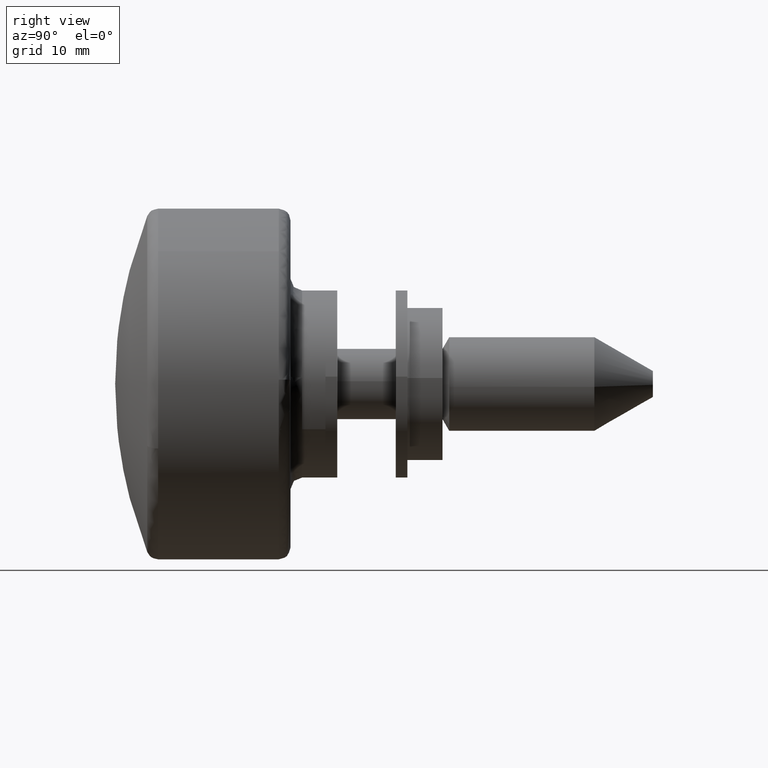
[diagram: clean part render]
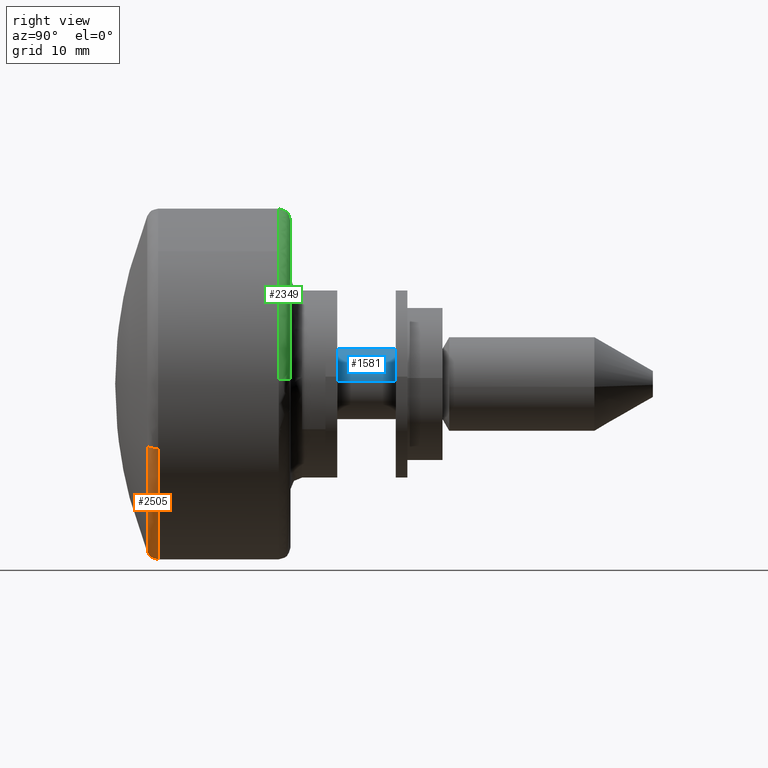
[diagram: same view with three faces highlighted in distinct colors, each labeled with its STEP entity id]
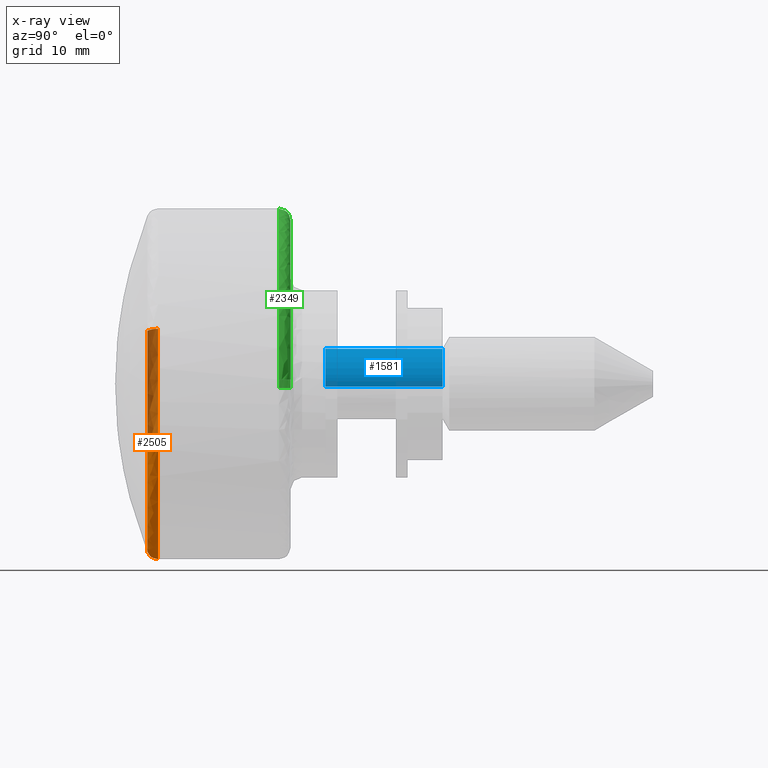
[diagram: x-ray of the same camera — body ghosted, the three highlighted faces saturated]
A machine part, right view with three faces highlighted in distinct colors.
The next image is the same camera in x-ray (body ghosted, the three faces saturated) — at least one of them is partly hidden behind the body in this view.
Their STEP definitions:

[orange] entity #2505 — the highlighted face is a freeform B-spline surface patch.
#1628=CARTESIAN_POINT('',(-14.327043465391450,-13.946647288323000,-5.521868290272103));
#1629=VERTEX_POINT('',#1628);
#1645=CARTESIAN_POINT('',(-14.327043465311441,0.0,-15.0));
#1646=VERTEX_POINT('',#1645);
#1647=CARTESIAN_POINT('',(-14.327043465391453,-13.946647288323000,-5.521868290272103));
#1648=CARTESIAN_POINT('',(-14.327043465311442,-10.193989473364850,-14.999999999999996));
#1649=CARTESIAN_POINT('',(-14.327043465311441,0.0,-15.0));
#1657=(BOUNDED_CURVE()B_SPLINE_CURVE(2,(#1647,#1648,#1649),.UNSPECIFIED.,.F.,.U.)B_SPLINE_CURVE_WITH_KNOTS((3,3),(0.812505050763747,1.0),.UNSPECIFIED.)CURVE()GEOMETRIC_REPRESENTATION_ITEM()RATIONAL_B_SPLINE_CURVE((0.890159125846247,0.780336003227716,1.0))REPRESENTATION_ITEM(''));
#1658=EDGE_CURVE('',#1629,#1646,#1657,.T.);
#1660=CARTESIAN_POINT('',(-14.327043465311441,11.059160299471101,-10.133852844333299));
#1661=VERTEX_POINT('',#1660);
#1662=CARTESIAN_POINT('',(-14.327043465311441,0.0,-15.0));
#1663=CARTESIAN_POINT('',(-14.327043465311441,6.600158400332546,-15.000000000000007));
#1664=CARTESIAN_POINT('',(-14.327043465311441,11.059160299471099,-10.133852844333299));
#1672=(BOUNDED_CURVE()B_SPLINE_CURVE(2,(#1662,#1663,#1664),.UNSPECIFIED.,.F.,.U.)B_SPLINE_CURVE_WITH_KNOTS((3,3),(0.0,0.131584798284372),.UNSPECIFIED.)CURVE()GEOMETRIC_REPRESENTATION_ITEM()RATIONAL_B_SPLINE_CURVE((1.0,0.845838819534286,0.853959781747465))REPRESENTATION_ITEM(''));
#1673=EDGE_CURVE('',#1646,#1661,#1672,.T.);
#1779=CARTESIAN_POINT('',(-14.327043465390380,14.239627476018679,4.715189216162353));
#1780=VERTEX_POINT('',#1779);
#1781=CARTESIAN_POINT('',(-14.327043465311441,11.059160299471099,-10.133852844333299));
#1782=CARTESIAN_POINT('',(-14.327043465311437,15.000000000000004,-5.833180556355178));
#1783=CARTESIAN_POINT('',(-14.327043465311441,15.0,0.0));
#1784=CARTESIAN_POINT('',(-14.327043465311444,15.000000000000002,2.418903534271208));
#1785=CARTESIAN_POINT('',(-14.327043465390382,14.239627476018688,4.715189216162353));
#1793=(BOUNDED_CURVE()B_SPLINE_CURVE(2,(#1781,#1782,#1783,#1784,#1785),.UNSPECIFIED.,.F.,.U.)B_SPLINE_CURVE_WITH_KNOTS((3,2,3),(0.131584798284372,0.250000000000000,0.303444232663925),.UNSPECIFIED.)CURVE()GEOMETRIC_REPRESENTATION_ITEM()RATIONAL_B_SPLINE_CURVE((0.853959781747465,0.861267961652261,1.0,0.937386186672192,0.901543151004119))REPRESENTATION_ITEM(''));
#1794=EDGE_CURVE('',#1661,#1780,#1793,.T.);
#2381=CARTESIAN_POINT('',(-15.256702503002289,13.640064215933929,4.516654934128848));
#2382=VERTEX_POINT('',#2381);
#2396=CARTESIAN_POINT('',(-15.256702503107171,-13.359420035854139,-5.289368573544957));
#2397=VERTEX_POINT('',#2396);
#2413=CARTESIAN_POINT('',(-15.256702503107181,-13.359420035854141,-5.289368573544957));
#2414=CARTESIAN_POINT('',(-15.006409682806121,-13.946647288222717,-5.521868290230152));
#2415=CARTESIAN_POINT('',(-14.327043465391446,-13.946647288323005,-5.521868290272103));
#2423=(BOUNDED_CURVE()B_SPLINE_CURVE(2,(#2413,#2414,#2415),.UNSPECIFIED.,.F.,.U.)B_SPLINE_CURVE_WITH_KNOTS((3,3),(-1.675526647627337,-0.339037320909828),.UNSPECIFIED.)CURVE()GEOMETRIC_REPRESENTATION_ITEM()RATIONAL_B_SPLINE_CURVE((0.904968416644587,0.747154401147902,0.901566036643014))REPRESENTATION_ITEM(''));
#2424=EDGE_CURVE('',#2397,#1629,#2423,.T.);
#2429=CARTESIAN_POINT('',(-15.256702503002284,13.640064215933929,4.516654934128848));
#2430=CARTESIAN_POINT('',(-15.006409682389457,14.239627475918562,4.715189216123598));
#2431=CARTESIAN_POINT('',(-14.327043465390382,14.239627476018679,4.715189216162353));
#2439=(BOUNDED_CURVE()B_SPLINE_CURVE(2,(#2429,#2430,#2431),.UNSPECIFIED.,.F.,.U.)B_SPLINE_CURVE_WITH_KNOTS((3,3),(-1.675526646948971,-0.339037320907277),.UNSPECIFIED.)CURVE()GEOMETRIC_REPRESENTATION_ITEM()RATIONAL_B_SPLINE_CURVE((0.884611876649865,0.730347761288002,0.881286030618994))REPRESENTATION_ITEM(''));
#2440=EDGE_CURVE('',#2382,#1780,#2439,.T.);
#2445=CARTESIAN_POINT('',(-15.275719198547586,-13.310913043381374,-5.270163296545596));
#2446=CARTESIAN_POINT('',(-15.275719198547590,-8.040749746835777,-18.581076339926966));
#2447=CARTESIAN_POINT('',(-15.275719198547586,5.270163296545595,-13.310913043381374));
#2448=CARTESIAN_POINT('',(-15.275719198547586,17.840369817282902,-8.334016205449723));
#2449=CARTESIAN_POINT('',(-15.275719198547595,13.590538226498158,4.500255318846810));
#2450=CARTESIAN_POINT('',(-15.034110626661432,-13.984785217002278,-5.536968164431514));
#2451=CARTESIAN_POINT('',(-15.034110626661423,-8.447817052570766,-19.521753381433797));
#2452=CARTESIAN_POINT('',(-15.034110626661432,5.536968164431513,-13.984785217002278));
#2453=CARTESIAN_POINT('',(-15.034110626661425,18.743548190381137,-8.755930284300293));
#2454=CARTESIAN_POINT('',(-15.034110626661422,14.278566576283081,4.728083178864892));
#2455=CARTESIAN_POINT('',(-14.271319138471748,-13.945202594684160,-5.521296295594107));
#2456=CARTESIAN_POINT('',(-14.271319138471748,-8.423906299090053,-19.466498890278270));
#2457=CARTESIAN_POINT('',(-14.271319138471748,5.521296295594106,-13.945202594684160));
#2458=CARTESIAN_POINT('',(-14.271319138471750,18.690496335997324,-8.731147445228450));
#2459=CARTESIAN_POINT('',(-14.271319138471744,14.238152433394003,4.714700783078781));
#2467=(BOUNDED_SURFACE()B_SPLINE_SURFACE(2,2,((#2445,#2450,#2455),(#2446,#2451,#2456),(#2447,#2452,#2457),(#2448,#2453,#2458),(#2449,#2454,#2459)),.UNSPECIFIED.,.F.,.F.,.U.)B_SPLINE_SURFACE_WITH_KNOTS((3,2,3),(3,3),(0.0,24.850239309893229,48.706469047390733),(0.0,1.353108793930158),.UNSPECIFIED.)GEOMETRIC_REPRESENTATION_ITEM()RATIONAL_B_SPLINE_SURFACE(((0.921513161804328,0.730779672986403,0.917770750432629),(0.651608205664496,0.516739262321973,0.648961921205579),(0.921513161804328,0.730779672986403,0.917770750432629),(0.662404403910090,0.525300878748551,0.659714274374661),(0.900784461172789,0.714341369447375,0.897126232347992)))REPRESENTATION_ITEM('')SURFACE());
#2468=CARTESIAN_POINT('',(-15.256702503872249,0.0,-14.368421052631540));
#2469=VERTEX_POINT('',#2468);
#2470=CARTESIAN_POINT('',(-15.256702503002289,13.640064215933927,4.516654934128848));
#2471=CARTESIAN_POINT('',(-15.256702503872251,14.368421052631538,2.317054964474377));
#2472=CARTESIAN_POINT('',(-15.256702503872249,14.368421052631540,0.0));
#2473=CARTESIAN_POINT('',(-15.256702503872257,14.368421052631538,-14.368421052631538));
#2474=CARTESIAN_POINT('',(-15.256702503872249,0.0,-14.368421052631540));
#2482=(BOUNDED_CURVE()B_SPLINE_CURVE(2,(#2470,#2471,#2472,#2473,#2474),.UNSPECIFIED.,.F.,.U.)B_SPLINE_CURVE_WITH_KNOTS((3,2,3),(0.696555767334622,0.750000000000000,1.0),.UNSPECIFIED.)CURVE()GEOMETRIC_REPRESENTATION_ITEM()RATIONAL_B_SPLINE_CURVE((0.901543151002170,0.937386186670489,1.0,0.707106781186547,1.0))REPRESENTATION_ITEM(''));
#2483=EDGE_CURVE('',#2382,#2469,#2482,.T.);
#2484=ORIENTED_EDGE('',*,*,#2483,.F.);
#2485=ORIENTED_EDGE('',*,*,#2440,.T.);
#2486=ORIENTED_EDGE('',*,*,#1794,.F.);
#2487=ORIENTED_EDGE('',*,*,#1673,.F.);
#2488=ORIENTED_EDGE('',*,*,#1658,.F.);
#2489=ORIENTED_EDGE('',*,*,#2424,.F.);
#2490=CARTESIAN_POINT('',(-15.256702503872249,0.0,-14.368421052631540));
#2491=CARTESIAN_POINT('',(-15.256702503872244,-9.764768863885633,-14.368421052631547));
#2492=CARTESIAN_POINT('',(-15.256702503107174,-13.359420035854136,-5.289368573544957));
#2500=(BOUNDED_CURVE()B_SPLINE_CURVE(2,(#2490,#2491,#2492),.UNSPECIFIED.,.F.,.U.)B_SPLINE_CURVE_WITH_KNOTS((3,3),(0.0,0.187494949235139),.UNSPECIFIED.)CURVE()GEOMETRIC_REPRESENTATION_ITEM()RATIONAL_B_SPLINE_CURVE((1.0,0.780336003229021,0.890159125844942))REPRESENTATION_ITEM(''));
#2501=EDGE_CURVE('',#2469,#2397,#2500,.T.);
#2502=ORIENTED_EDGE('',*,*,#2501,.F.);
#2503=EDGE_LOOP('',(#2484,#2485,#2486,#2487,#2488,#2489,#2502));
#2504=FACE_OUTER_BOUND('',#2503,.T.);
#2505=ADVANCED_FACE('',(#2504),#2467,.T.);

[blue] entity #1581 — the highlighted face is a freeform B-spline surface patch.
#985=CARTESIAN_POINT('',(10.0,2.990752001195804,-0.235377287229015));
#986=VERTEX_POINT('',#985);
#1000=CARTESIAN_POINT('',(10.0,0.0,3.0));
#1001=VERTEX_POINT('',#1000);
#1002=CARTESIAN_POINT('',(10.0,2.990752001195804,-0.235377287229015));
#1003=CARTESIAN_POINT('',(9.999999999999998,3.000000000000000,-0.117870321068699));
#1004=CARTESIAN_POINT('',(10.0,3.0,0.0));
#1005=CARTESIAN_POINT('',(10.000000000000002,3.0,3.0));
#1006=CARTESIAN_POINT('',(10.0,0.0,3.0));
#1014=(BOUNDED_CURVE()B_SPLINE_CURVE(2,(#1002,#1003,#1004,#1005,#1006),.UNSPECIFIED.,.F.,.U.)B_SPLINE_CURVE_WITH_KNOTS((3,2,3),(0.236331300627553,0.250000000000000,0.500000000000000),.UNSPECIFIED.)CURVE()GEOMETRIC_REPRESENTATION_ITEM()RATIONAL_B_SPLINE_CURVE((0.969723356160935,0.983986122575243,1.0,0.707106781186548,1.0))REPRESENTATION_ITEM(''));
#1015=EDGE_CURVE('',#986,#1001,#1014,.T.);
#1017=CARTESIAN_POINT('',(10.0,-2.990752001195804,0.235377287229015));
#1018=VERTEX_POINT('',#1017);
#1019=CARTESIAN_POINT('',(10.0,0.0,3.0));
#1020=CARTESIAN_POINT('',(10.000000000000002,-2.773171474890005,3.000000000000001));
#1021=CARTESIAN_POINT('',(10.0,-2.990752001195804,0.235377287229015));
#1029=(BOUNDED_CURVE()B_SPLINE_CURVE(2,(#1019,#1020,#1021),.UNSPECIFIED.,.F.,.U.)B_SPLINE_CURVE_WITH_KNOTS((3,3),(0.500000000000000,0.736331300627552),.UNSPECIFIED.)CURVE()GEOMETRIC_REPRESENTATION_ITEM()RATIONAL_B_SPLINE_CURVE((1.0,0.723120658611306,0.969723356160933))REPRESENTATION_ITEM(''));
#1030=EDGE_CURVE('',#1001,#1018,#1029,.T.);
#1480=CARTESIAN_POINT('',(2.775558E-017,-2.990752001195804,0.235377287229016));
#1481=VERTEX_POINT('',#1480);
#1482=CARTESIAN_POINT('',(10.0,-2.990752001195804,0.235377287229015));
#1483=CARTESIAN_POINT('',(2.775558E-017,-2.990752001195804,0.235377287229016));
#1484=QUASI_UNIFORM_CURVE('',1,(#1482,#1483),.UNSPECIFIED.,.F.,.U.);
#1485=EDGE_CURVE('',#1018,#1481,#1484,.T.);
#1504=CARTESIAN_POINT('',(2.775558E-017,2.990752001195804,-0.235377287229015));
#1505=VERTEX_POINT('',#1504);
#1519=CARTESIAN_POINT('',(10.0,2.990752001195804,-0.235377287229015));
#1520=CARTESIAN_POINT('',(2.775558E-017,2.990752001195804,-0.235377287229015));
#1521=QUASI_UNIFORM_CURVE('',1,(#1519,#1520),.UNSPECIFIED.,.F.,.U.);
#1522=EDGE_CURVE('',#986,#1505,#1521,.T.);
#1527=CARTESIAN_POINT('',(10.250000000000000,-2.990752001199383,0.235377287183537));
#1528=CARTESIAN_POINT('',(10.250000000000002,-2.755374714015846,3.226129288382921));
#1529=CARTESIAN_POINT('',(10.250000000000000,0.235377287183537,2.990752001199383));
#1530=CARTESIAN_POINT('',(10.250000000000002,3.226129288382921,2.755374714015846));
#1531=CARTESIAN_POINT('',(10.250000000000000,2.990752001199383,-0.235377287183537));
#1532=CARTESIAN_POINT('',(-0.256250000000001,-2.990752001199383,0.235377287183537));
#1533=CARTESIAN_POINT('',(-0.256250000000001,-2.755374714015846,3.226129288382921));
#1534=CARTESIAN_POINT('',(-0.256250000000001,0.235377287183537,2.990752001199383));
#1535=CARTESIAN_POINT('',(-0.256250000000001,3.226129288382921,2.755374714015846));
#1536=CARTESIAN_POINT('',(-0.256250000000001,2.990752001199383,-0.235377287183537));
#1544=(BOUNDED_SURFACE()B_SPLINE_SURFACE(2,1,((#1527,#1532),(#1528,#1533),(#1529,#1534),(#1530,#1535),(#1531,#1536)),.UNSPECIFIED.,.F.,.F.,.U.)B_SPLINE_SURFACE_WITH_KNOTS((3,2,3),(2,2),(0.0,4.970562748477140,9.941125496954280),(0.0,10.506250000000000),.UNSPECIFIED.)GEOMETRIC_REPRESENTATION_ITEM()RATIONAL_B_SPLINE_SURFACE(((1.0,1.0),(0.707106781186548,0.707106781186548),(1.0,1.0),(0.707106781186548,0.707106781186548),(1.0,1.0)))REPRESENTATION_ITEM('')SURFACE());
#1545=ORIENTED_EDGE('',*,*,#1015,.F.);
#1546=ORIENTED_EDGE('',*,*,#1522,.T.);
#1547=CARTESIAN_POINT('',(0.0,0.0,3.0));
#1548=VERTEX_POINT('',#1547);
#1549=CARTESIAN_POINT('',(2.775558E-017,2.990752001195804,-0.235377287229015));
#1550=CARTESIAN_POINT('',(0.0,3.000000000000000,-0.117870321068699));
#1551=CARTESIAN_POINT('',(0.0,3.0,0.0));
#1552=CARTESIAN_POINT('',(0.0,3.0,3.0));
#1553=CARTESIAN_POINT('',(0.0,0.0,3.0));
#1561=(BOUNDED_CURVE()B_SPLINE_CURVE(2,(#1549,#1550,#1551,#1552,#1553),.UNSPECIFIED.,.F.,.U.)B_SPLINE_CURVE_WITH_KNOTS((3,2,3),(0.236331300627553,0.250000000000000,0.500000000000000),.UNSPECIFIED.)CURVE()GEOMETRIC_REPRESENTATION_ITEM()RATIONAL_B_SPLINE_CURVE((0.969723356160935,0.983986122575243,1.0,0.707106781186548,1.0))REPRESENTATION_ITEM(''));
#1562=EDGE_CURVE('',#1505,#1548,#1561,.T.);
#1563=ORIENTED_EDGE('',*,*,#1562,.T.);
#1564=CARTESIAN_POINT('',(0.0,0.0,3.0));
#1565=CARTESIAN_POINT('',(0.0,-2.773171474890005,3.000000000000001));
#1566=CARTESIAN_POINT('',(2.775558E-017,-2.990752001195804,0.235377287229016));
#1574=(BOUNDED_CURVE()B_SPLINE_CURVE(2,(#1564,#1565,#1566),.UNSPECIFIED.,.F.,.U.)B_SPLINE_CURVE_WITH_KNOTS((3,3),(0.500000000000000,0.736331300627552),.UNSPECIFIED.)CURVE()GEOMETRIC_REPRESENTATION_ITEM()RATIONAL_B_SPLINE_CURVE((1.0,0.723120658611306,0.969723356160933))REPRESENTATION_ITEM(''));
#1575=EDGE_CURVE('',#1548,#1481,#1574,.T.);
#1576=ORIENTED_EDGE('',*,*,#1575,.T.);
#1577=ORIENTED_EDGE('',*,*,#1485,.F.);
#1578=ORIENTED_EDGE('',*,*,#1030,.F.);
#1579=EDGE_LOOP('',(#1545,#1546,#1563,#1576,#1577,#1578));
#1580=FACE_OUTER_BOUND('',#1579,.T.);
#1581=ADVANCED_FACE('',(#1580),#1544,.T.);

[green] entity #2349 — the highlighted face is a freeform B-spline surface patch.
#1604=CARTESIAN_POINT('',(-3.999999999685250,-14.995262839249500,0.376951431650095));
#1605=VERTEX_POINT('',#1604);
#1606=CARTESIAN_POINT('',(-3.999999999921281,-9.815093678201350,11.343012654851851));
#1607=VERTEX_POINT('',#1606);
#1608=CARTESIAN_POINT('',(-3.999999999685250,-14.995262839249500,0.376951431650095));
#1609=CARTESIAN_POINT('',(-3.999999999827909,-14.828652074315851,7.004787280665462));
#1610=CARTESIAN_POINT('',(-3.999999999921281,-9.815093678201350,11.343012654851854));
#1618=(BOUNDED_CURVE()B_SPLINE_CURVE(2,(#1608,#1609,#1610),.UNSPECIFIED.,.F.,.U.)B_SPLINE_CURVE_WITH_KNOTS((3,3),(0.254420108230193,0.385882135623661),.UNSPECIFIED.)CURVE()GEOMETRIC_REPRESENTATION_ITEM()RATIONAL_B_SPLINE_CURVE((0.989826157681574,0.841254998950184,0.854663300080243))REPRESENTATION_ITEM(''));
#1619=EDGE_CURVE('',#1605,#1607,#1618,.T.);
#1733=CARTESIAN_POINT('',(-4.0,0.0,15.0));
#1734=VERTEX_POINT('',#1733);
#1735=CARTESIAN_POINT('',(-3.999999999921281,-9.815093678201350,11.343012654851854));
#1736=CARTESIAN_POINT('',(-4.0,-5.588821867187028,15.000000000000004));
#1737=CARTESIAN_POINT('',(-4.0,0.0,15.0));
#1745=(BOUNDED_CURVE()B_SPLINE_CURVE(2,(#1735,#1736,#1737),.UNSPECIFIED.,.F.,.U.)B_SPLINE_CURVE_WITH_KNOTS((3,3),(0.385882135623661,0.500000000000000),.UNSPECIFIED.)CURVE()GEOMETRIC_REPRESENTATION_ITEM()RATIONAL_B_SPLINE_CURVE((0.854663300080243,0.866302605514789,1.0))REPRESENTATION_ITEM(''));
#1746=EDGE_CURVE('',#1607,#1734,#1745,.T.);
#1748=CARTESIAN_POINT('',(-3.999999999685250,14.995262839249500,-0.376951431650094));
#1749=VERTEX_POINT('',#1748);
#1750=CARTESIAN_POINT('',(-4.0,0.0,15.0));
#1751=CARTESIAN_POINT('',(-4.0,14.999999999999996,14.999999999999996));
#1752=CARTESIAN_POINT('',(-4.0,15.0,0.0));
#1753=CARTESIAN_POINT('',(-4.000000000000000,15.0,-0.188505481850731));
#1754=CARTESIAN_POINT('',(-3.999999999685249,14.995262839249495,-0.376951431650094));
#1762=(BOUNDED_CURVE()B_SPLINE_CURVE(2,(#1750,#1751,#1752,#1753,#1754),.UNSPECIFIED.,.F.,.U.)B_SPLINE_CURVE_WITH_KNOTS((3,2,3),(0.500000000000000,0.750000000000000,0.754420108230193),.UNSPECIFIED.)CURVE()GEOMETRIC_REPRESENTATION_ITEM()RATIONAL_B_SPLINE_CURVE((1.0,0.707106781186547,1.0,0.994821521091819,0.989826157681574))REPRESENTATION_ITEM(''));
#1763=EDGE_CURVE('',#1734,#1749,#1762,.T.);
#2223=CARTESIAN_POINT('',(-3.0,-13.995578650142591,0.351821336216347));
#2224=VERTEX_POINT('',#2223);
#2242=CARTESIAN_POINT('',(-3.999999999685249,-14.995262839249492,0.376951431650095));
#2243=CARTESIAN_POINT('',(-3.000000000353160,-14.995262838620190,0.376951431634243));
#2244=CARTESIAN_POINT('',(-3.000000000000001,-13.995578650142591,0.351821336216347));
#2252=(BOUNDED_CURVE()B_SPLINE_CURVE(2,(#2242,#2243,#2244),.UNSPECIFIED.,.F.,.U.)B_SPLINE_CURVE_WITH_KNOTS((3,3),(-1.723441281336640,-0.263586879293336),.UNSPECIFIED.)CURVE()GEOMETRIC_REPRESENTATION_ITEM()RATIONAL_B_SPLINE_CURVE((0.883897566910235,0.626638727418212,0.888510408931420))REPRESENTATION_ITEM(''));
#2253=EDGE_CURVE('',#1605,#2224,#2252,.T.);
#2258=CARTESIAN_POINT('',(-3.0,13.995578650142591,-0.351821336216346));
#2259=VERTEX_POINT('',#2258);
#2260=CARTESIAN_POINT('',(-3.999999999685250,14.995262839249493,-0.376951431650094));
#2261=CARTESIAN_POINT('',(-3.000000000353159,14.995262838620194,-0.376951431634242));
#2262=CARTESIAN_POINT('',(-3.000000000000000,13.995578650142598,-0.351821336216346));
#2270=(BOUNDED_CURVE()B_SPLINE_CURVE(2,(#2260,#2261,#2262),.UNSPECIFIED.,.F.,.U.)B_SPLINE_CURVE_WITH_KNOTS((3,3),(-1.723441281336640,-0.263586879293337),.UNSPECIFIED.)CURVE()GEOMETRIC_REPRESENTATION_ITEM()RATIONAL_B_SPLINE_CURVE((0.883897566910235,0.626638727418213,0.888510408931419))REPRESENTATION_ITEM(''));
#2271=EDGE_CURVE('',#1749,#2259,#2270,.T.);
#2289=CARTESIAN_POINT('',(-4.069724198540260,14.992829914473205,-0.376890272703576));
#2290=CARTESIAN_POINT('',(-4.069724198540259,15.369720187176783,14.615939641769630));
#2291=CARTESIAN_POINT('',(-4.069724198540260,0.376890272703577,14.992829914473205));
#2292=CARTESIAN_POINT('',(-4.069724198540259,-14.615939641769629,15.369720187176783));
#2293=CARTESIAN_POINT('',(-4.069724198540260,-14.992829914473205,0.376890272703577));
#2294=CARTESIAN_POINT('',(-2.922663977687098,15.072977565993575,-0.378905027116877));
#2295=CARTESIAN_POINT('',(-2.922663977687095,15.451882593110451,14.694072538876695));
#2296=CARTESIAN_POINT('',(-2.922663977687098,0.378905027116878,15.072977565993575));
#2297=CARTESIAN_POINT('',(-2.922663977687095,-14.694072538876695,15.451882593110451));
#2298=CARTESIAN_POINT('',(-2.922663977687098,-15.072977565993575,0.378905027116879));
#2299=CARTESIAN_POINT('',(-3.002407669788963,13.926249685070262,-0.350078542308911));
#2300=CARTESIAN_POINT('',(-3.002407669788961,14.276328227379178,13.576171142761353));
#2301=CARTESIAN_POINT('',(-3.002407669788963,0.350078542308912,13.926249685070262));
#2302=CARTESIAN_POINT('',(-3.002407669788961,-13.576171142761353,14.276328227379180));
#2303=CARTESIAN_POINT('',(-3.002407669788963,-13.926249685070262,0.350078542308913));
#2311=(BOUNDED_SURFACE()B_SPLINE_SURFACE(2,2,((#2289,#2294,#2299),(#2290,#2295,#2300),(#2291,#2296,#2301),(#2292,#2297,#2302),(#2293,#2298,#2303)),.UNSPECIFIED.,.F.,.F.,.U.)B_SPLINE_SURFACE_WITH_KNOTS((3,2,3),(3,3),(0.0,24.848781467195689,49.697562934391378),(0.0,1.822370696087855),.UNSPECIFIED.)GEOMETRIC_REPRESENTATION_ITEM()RATIONAL_B_SPLINE_SURFACE(((0.910892947162218,0.599412870471164,0.915966744701400),(0.644098579873404,0.423848905440654,0.647686296519727),(0.910892947162218,0.599412870471164,0.915966744701400),(0.644098579873404,0.423848905440654,0.647686296519727),(0.910892947162218,0.599412870471164,0.915966744701400)))REPRESENTATION_ITEM('')SURFACE());
#2312=CARTESIAN_POINT('',(-3.0,0.0,14.0));
#2313=VERTEX_POINT('',#2312);
#2314=CARTESIAN_POINT('',(-3.0,0.0,14.0));
#2315=CARTESIAN_POINT('',(-2.999999999999999,-13.652490266519003,14.0));
#2316=CARTESIAN_POINT('',(-3.000000000000001,-13.995578650142587,0.351821336216347));
#2324=(BOUNDED_CURVE()B_SPLINE_CURVE(2,(#2314,#2315,#2316),.UNSPECIFIED.,.F.,.U.)B_SPLINE_CURVE_WITH_KNOTS((3,3),(0.500000000000000,0.745579891769678),.UNSPECIFIED.)CURVE()GEOMETRIC_REPRESENTATION_ITEM()RATIONAL_B_SPLINE_CURVE((1.0,0.712285260094878,0.989826157681284))REPRESENTATION_ITEM(''));
#2325=EDGE_CURVE('',#2313,#2224,#2324,.T.);
#2326=ORIENTED_EDGE('',*,*,#2325,.F.);
#2327=CARTESIAN_POINT('',(-3.0,13.995578650142592,-0.351821336216346));
#2328=CARTESIAN_POINT('',(-3.000000000000000,14.000000000000002,-0.175938449732502));
#2329=CARTESIAN_POINT('',(-3.0,14.0,0.0));
#2330=CARTESIAN_POINT('',(-3.000000000000000,13.999999999999998,13.999999999999998));
#2331=CARTESIAN_POINT('',(-3.0,0.0,14.0));
#2339=(BOUNDED_CURVE()B_SPLINE_CURVE(2,(#2327,#2328,#2329,#2330,#2331),.UNSPECIFIED.,.F.,.U.)B_SPLINE_CURVE_WITH_KNOTS((3,2,3),(0.245579891769678,0.250000000000000,0.500000000000000),.UNSPECIFIED.)CURVE()GEOMETRIC_REPRESENTATION_ITEM()RATIONAL_B_SPLINE_CURVE((0.989826157681283,0.994821521091668,1.0,0.707106781186547,1.0))REPRESENTATION_ITEM(''));
#2340=EDGE_CURVE('',#2259,#2313,#2339,.T.);
#2341=ORIENTED_EDGE('',*,*,#2340,.F.);
#2342=ORIENTED_EDGE('',*,*,#2271,.F.);
#2343=ORIENTED_EDGE('',*,*,#1763,.F.);
#2344=ORIENTED_EDGE('',*,*,#1746,.F.);
#2345=ORIENTED_EDGE('',*,*,#1619,.F.);
#2346=ORIENTED_EDGE('',*,*,#2253,.T.);
#2347=EDGE_LOOP('',(#2326,#2341,#2342,#2343,#2344,#2345,#2346));
#2348=FACE_OUTER_BOUND('',#2347,.T.);
#2349=ADVANCED_FACE('',(#2348),#2311,.T.);